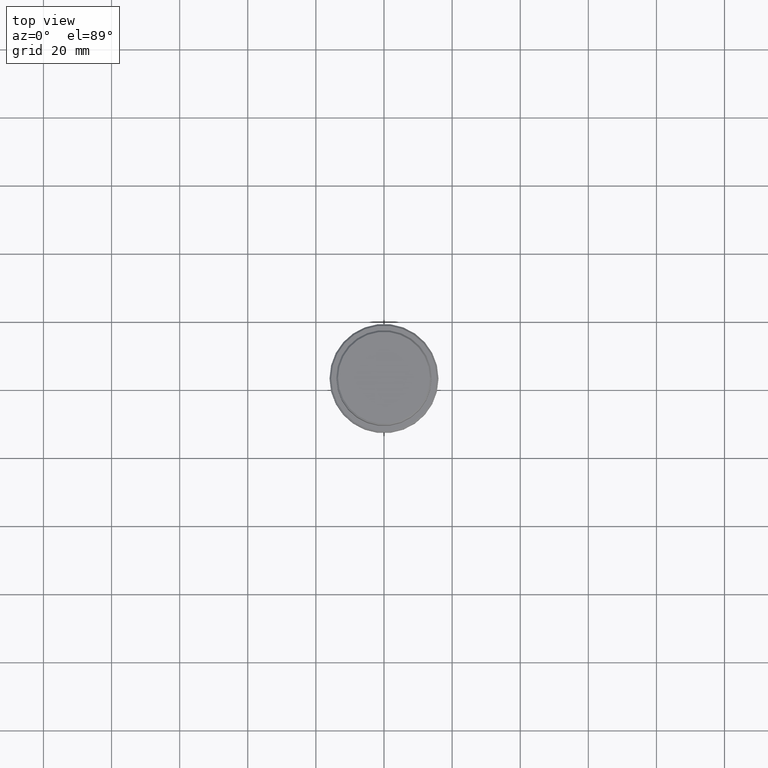
[diagram: clean part render]
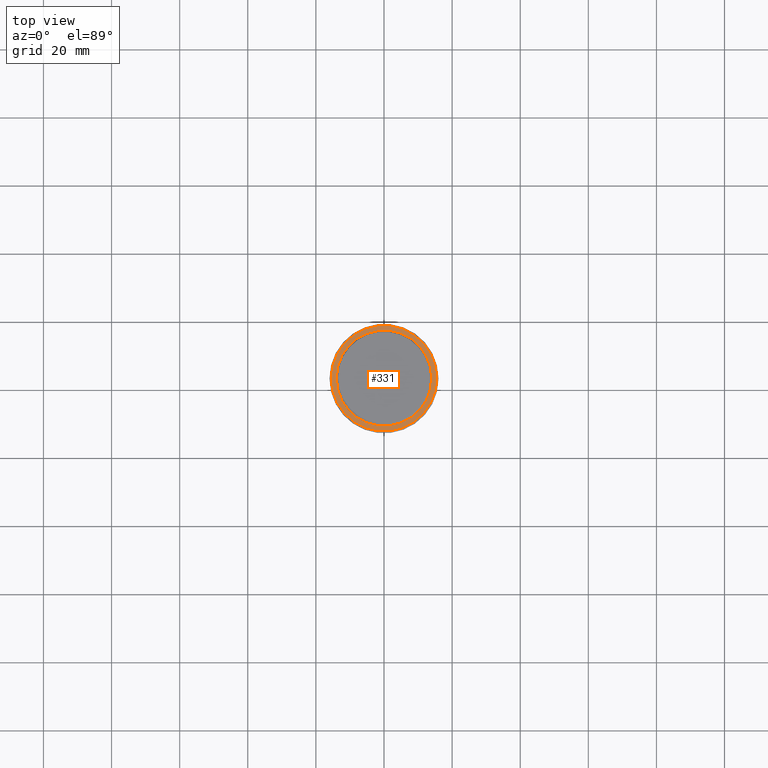
[diagram: same view with one face highlighted and labeled with its STEP entity id]
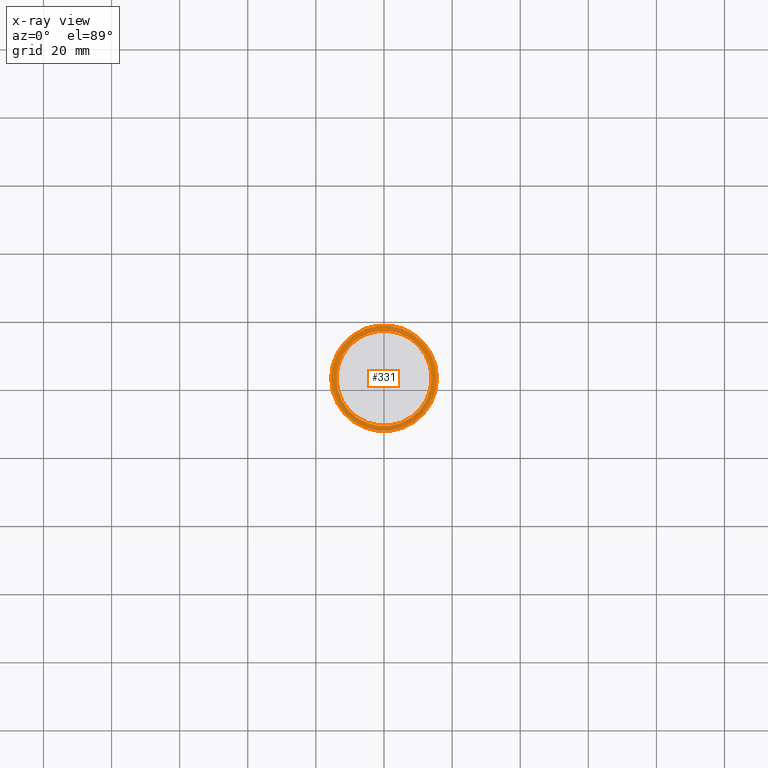
[diagram: x-ray of the same camera — body ghosted, the highlighted face saturated]
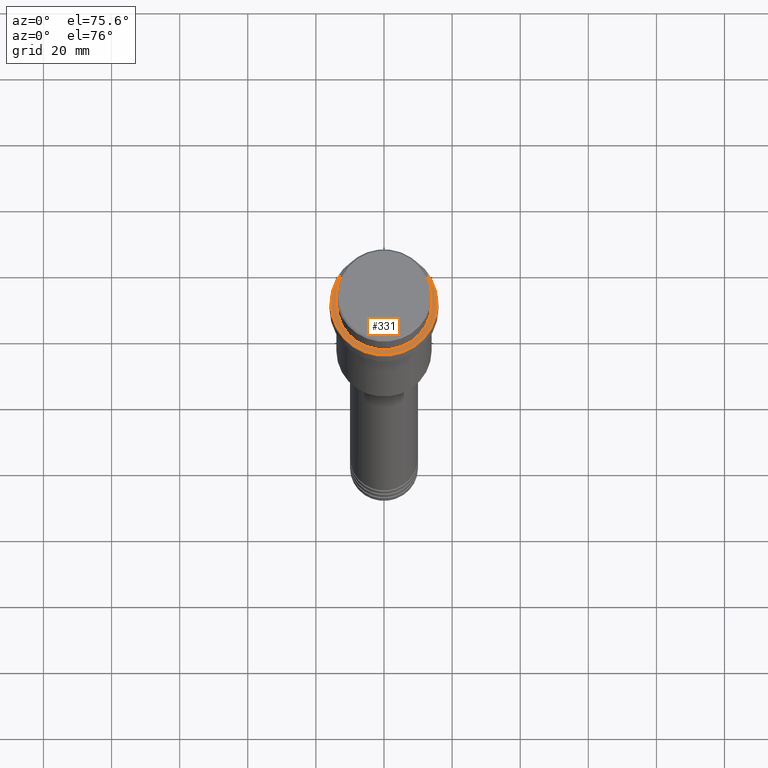
[diagram: same view with one face highlighted and labeled with its STEP entity id]
A machine part, top view. The second image highlights one B-rep face of the part: STEP entity #331.
The next image is the same camera in x-ray: the body ghosted, the highlighted face saturated — about 0% of this face is hidden behind the body in this view.
A second angle (auxiliary view) of the same face is appended — the face is thin or edge-on in the first view.
In plain terms, the highlighted planar face has unit normal (0, -0, 1).
Its self-contained STEP definition (entity closure, byte-faithful):
#68 = CARTESIAN_POINT ( 'NONE',  ( 0.000000000000000000, 0.000000000000000000, -9.999999999999998224 ) ) ;
#91 = EDGE_LOOP ( 'NONE', ( #923, #660 ) ) ;
#179 = PLANE ( 'NONE',  #228 ) ;
#186 = AXIS2_PLACEMENT_3D ( 'NONE', #474, #372, #814 ) ;
#189 = DIRECTION ( 'NONE',  ( 1.000000000000000000, 0.000000000000000000, 0.000000000000000000 ) ) ;
#196 = VERTEX_POINT ( 'NONE', #324 ) ;
#228 = AXIS2_PLACEMENT_3D ( 'NONE', #1280, #1073, #288 ) ;
#250 = CARTESIAN_POINT ( 'NONE',  ( -15.49999999999995737, 0.000000000000000000, -9.999999999999998224 ) ) ;
#288 = DIRECTION ( 'NONE',  ( 1.000000000000000000, 0.000000000000000000, 0.000000000000000000 ) ) ;
#321 = DIRECTION ( 'NONE',  ( 1.000000000000000000, 0.000000000000000000, 0.000000000000000000 ) ) ;
#324 = CARTESIAN_POINT ( 'NONE',  ( -13.99999999999996803, 1.714505518806290694E-15, -9.999999999999998224 ) ) ;
#331 = ADVANCED_FACE ( 'NONE', ( #844, #639 ), #179, .T. ) ;
#372 = DIRECTION ( 'NONE',  ( -0.000000000000000000, -0.000000000000000000, 1.000000000000000000 ) ) ;
#439 = EDGE_CURVE ( 'NONE', #558, #1265, #466, .T. ) ;
#466 = CIRCLE ( 'NONE', #968, 15.49999999999995737 ) ;
#474 = CARTESIAN_POINT ( 'NONE',  ( 0.000000000000000000, 0.000000000000000000, -9.999999999999998224 ) ) ;
#558 = VERTEX_POINT ( 'NONE', #666 ) ;
#575 = VERTEX_POINT ( 'NONE', #598 ) ;
#598 = CARTESIAN_POINT ( 'NONE',  ( 13.99999999999996803, 0.000000000000000000, -9.999999999999998224 ) ) ;
#630 = AXIS2_PLACEMENT_3D ( 'NONE', #1405, #1089, #321 ) ;
#639 = FACE_BOUND ( 'NONE', #673, .T. ) ;
#660 = ORIENTED_EDGE ( 'NONE', *, *, #439, .T. ) ;
#666 = CARTESIAN_POINT ( 'NONE',  ( 15.49999999999995737, 1.928818708657077006E-15, -9.999999999999998224 ) ) ;
#673 = EDGE_LOOP ( 'NONE', ( #748, #846 ) ) ;
#748 = ORIENTED_EDGE ( 'NONE', *, *, #989, .T. ) ;
#814 = DIRECTION ( 'NONE',  ( 1.000000000000000000, 0.000000000000000000, 0.000000000000000000 ) ) ;
#820 = CIRCLE ( 'NONE', #186, 15.49999999999995737 ) ;
#844 = FACE_OUTER_BOUND ( 'NONE', #91, .T. ) ;
#846 = ORIENTED_EDGE ( 'NONE', *, *, #998, .T. ) ;
#923 = ORIENTED_EDGE ( 'NONE', *, *, #1338, .T. ) ;
#946 = AXIS2_PLACEMENT_3D ( 'NONE', #1304, #971, #1416 ) ;
#968 = AXIS2_PLACEMENT_3D ( 'NONE', #68, #1042, #189 ) ;
#971 = DIRECTION ( 'NONE',  ( 0.000000000000000000, 0.000000000000000000, -1.000000000000000000 ) ) ;
#989 = EDGE_CURVE ( 'NONE', #575, #196, #1014, .T. ) ;
#998 = EDGE_CURVE ( 'NONE', #196, #575, #1342, .T. ) ;
#1014 = CIRCLE ( 'NONE', #946, 13.99999999999996803 ) ;
#1042 = DIRECTION ( 'NONE',  ( -0.000000000000000000, -0.000000000000000000, 1.000000000000000000 ) ) ;
#1073 = DIRECTION ( 'NONE',  ( 0.000000000000000000, -0.000000000000000000, 1.000000000000000000 ) ) ;
#1089 = DIRECTION ( 'NONE',  ( 0.000000000000000000, 0.000000000000000000, -1.000000000000000000 ) ) ;
#1265 = VERTEX_POINT ( 'NONE', #250 ) ;
#1280 = CARTESIAN_POINT ( 'NONE',  ( 0.000000000000000000, 13.49999999999996625, -9.999999999999998224 ) ) ;
#1304 = CARTESIAN_POINT ( 'NONE',  ( 0.000000000000000000, 0.000000000000000000, -9.999999999999998224 ) ) ;
#1338 = EDGE_CURVE ( 'NONE', #1265, #558, #820, .T. ) ;
#1342 = CIRCLE ( 'NONE', #630, 13.99999999999996803 ) ;
#1405 = CARTESIAN_POINT ( 'NONE',  ( 0.000000000000000000, 0.000000000000000000, -9.999999999999998224 ) ) ;
#1416 = DIRECTION ( 'NONE',  ( 1.000000000000000000, 0.000000000000000000, 0.000000000000000000 ) ) ;